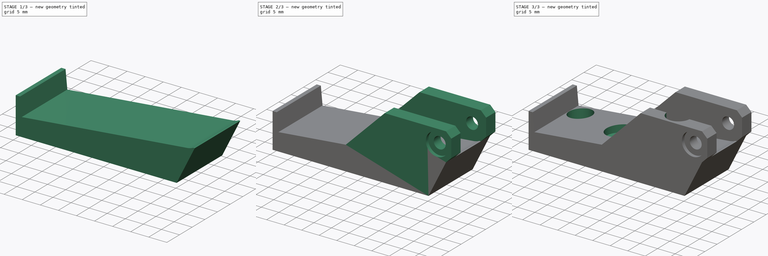
[diagram: build sequence overview — one tinted view per stage of 3, left to right]
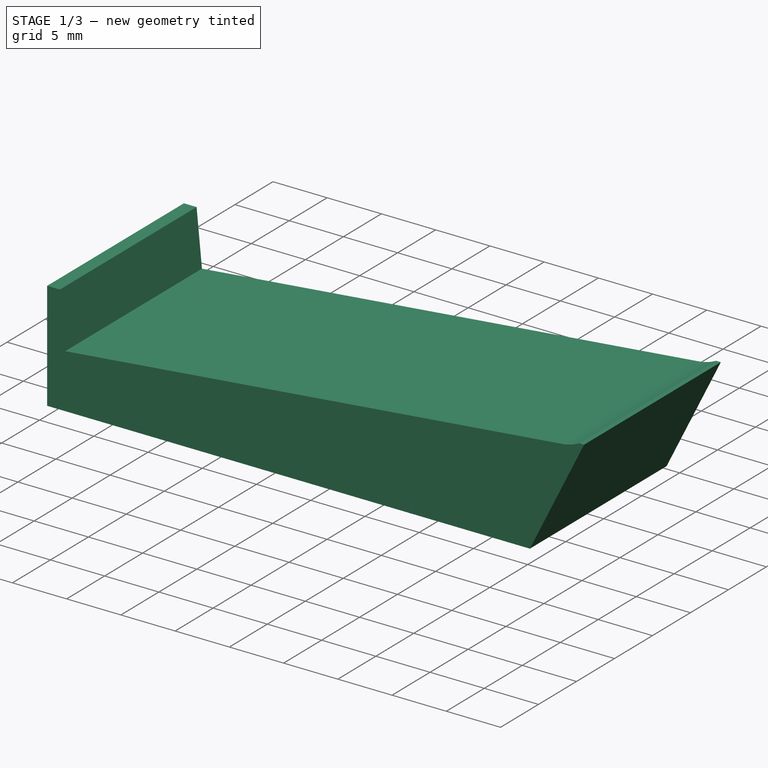
[diagram: stage 1 of 3 — iso view after this stage's code; geometry added in this stage tinted green]
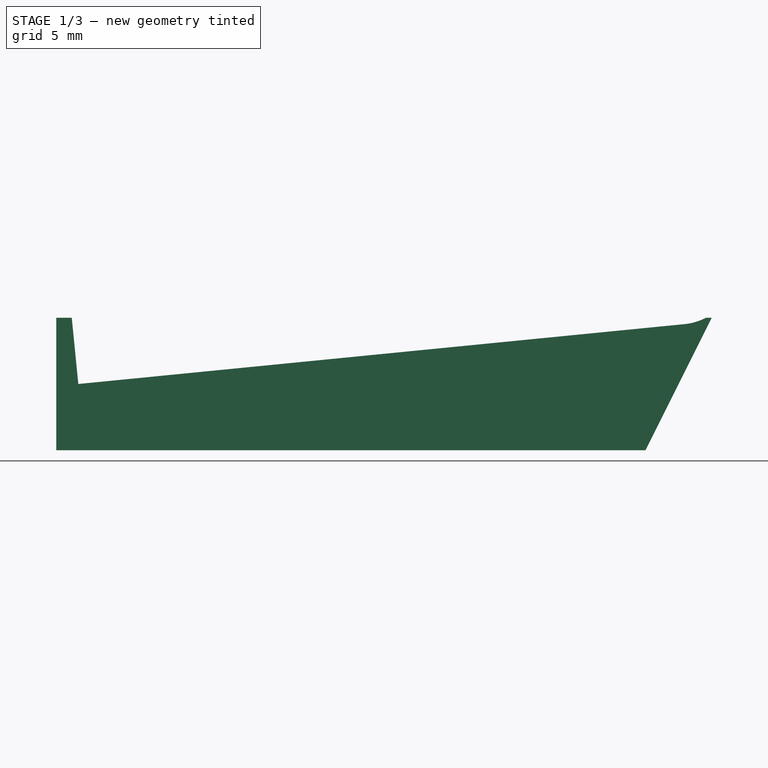
[diagram: stage 1 of 3 — front view after this stage's code; geometry added in this stage tinted green]
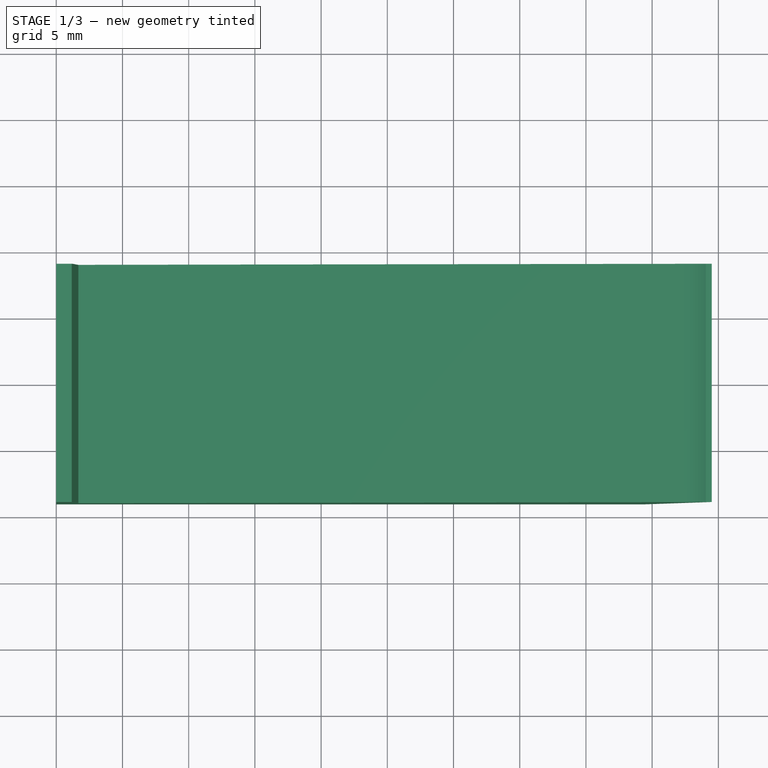
[diagram: stage 1 of 3 — top view after this stage's code; geometry added in this stage tinted green]
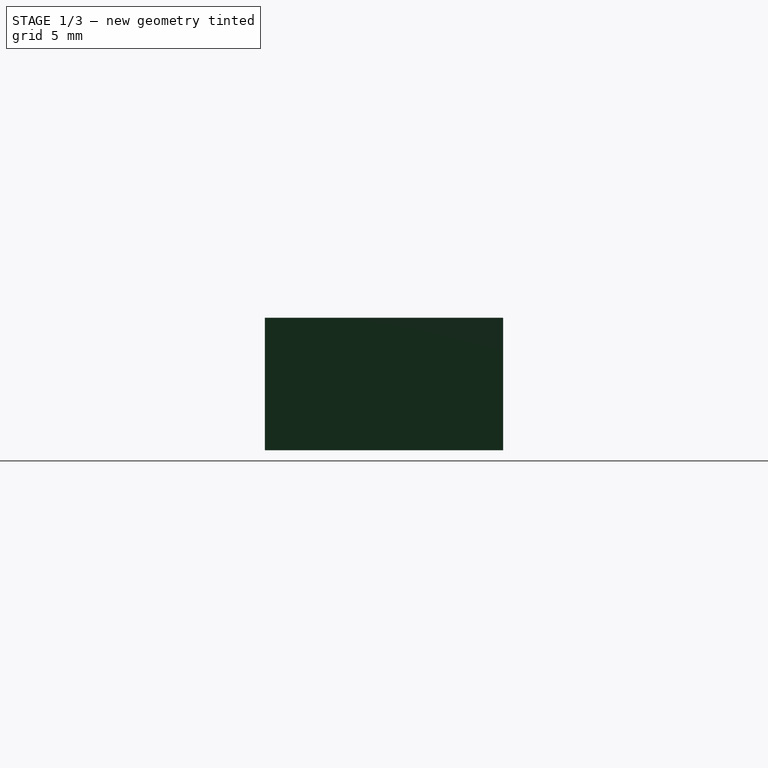
[diagram: stage 1 of 3 — right view after this stage's code; geometry added in this stage tinted green]
FCSTD DOCUMENT  (FreeCAD 1.0R39109 (Git))
Label: RearSightBase.stl
License: All rights reserved
LicenseURL: http://en.wikipedia.org/wiki/All_rights_reserved
objects: Sketcher::SketchObject×6, PartDesign::Hole×3, PartDesign::Pad×2, PartDesign::Pocket×1, PartDesign::Mirrored×1, PartDesign::Body×1, App::Part×1
note: 33 computed .brp shape members not serialized (recipe doc carries the construction recipe); baked Part::Feature solids carry a one-line shape summary decoded from their .brp

FEATURE [Sketcher::SketchObject] Sketch008
  ArcFitTolerance = 1e-06
  AttachmentSupport = -> [XZ_Plane005]
  FullyConstrained = true
  MakeInternals = false
  MapMode = 5
  Placement = pos=(0,0,0) rot=(1,0,0;1.5708rad)
  sketch-geometry (4):
    g0: LineSegment StartX=-20 StartY=0 StartZ=0 EndX=-20 EndY=-10 EndZ=0
    g1: LineSegment StartX=-20 StartY=-10 StartZ=0 EndX=24.5 EndY=-10 EndZ=0
    g2: LineSegment StartX=24.5 StartY=-10 StartZ=0 EndX=29.5 EndY=0 EndZ=0
    g3: LineSegment StartX=29.5 StartY=0 StartZ=0 EndX=-20 EndY=0 EndZ=0
  constraints (12):
    c: Vertical(g0)
    c: Coincident(g0,g1)
    c: Horizontal(g1)
    c: Coincident(g1,g2)
    c: Coincident(g2,g3)
    c: Coincident(g3,g0)
    c: Horizontal(g3)
    c: DistanceX(g2,g2) = 5
    c: DistanceY(g2,g2) = 10
    c: DistanceX(g1,g1) = 44.5
    c: PointOnObject(g0,g-1)
    c: DistanceX(g0,g-1) = 20
FEATURE [PartDesign::Pad] Pad003
  Direction = (0,-1,2e-16)
  Length = 18
  Length2 = 10
  Midplane = true
  Placement = pos=(0,0,0) rot=(1,0,0;1.5708rad)
  Profile = -> Sketch008
  ReferenceAxis = -> Sketch008 [N_Axis]
  Refine = true
  Suppressed = false
  Type = 0
FEATURE [Sketcher::SketchObject] Sketch009
  ArcFitTolerance = 1e-06
  AttachmentOffset = pos=(0,0,9) rot=(0,0,1;0rad)
  AttachmentSupport = -> [XZ_Plane005]
  FullyConstrained = true
  MakeInternals = false
  MapMode = 5
  Placement = pos=(0,-9,2e-15) rot=(1,0,0;1.5708rad)
  sketch-geometry (7):
    g0: LineSegment StartX=31 StartY=6.5 StartZ=0 EndX=29.5 EndY=8 EndZ=0
    g1: LineSegment StartX=29.5 StartY=8 StartZ=0 EndX=12 EndY=8 EndZ=0
    g2: LineSegment StartX=12 StartY=8 StartZ=0 EndX=-1 EndY=-5 EndZ=0
    g3: LineSegment StartX=29.5 StartY=0 StartZ=0 EndX=31 EndY=1.5 EndZ=0
    g4: LineSegment StartX=31 StartY=1.5 StartZ=0 EndX=31 EndY=6.5 EndZ=0
    g5: LineSegment StartX=29.5 StartY=0 StartZ=0 EndX=26.6132 EndY=-5 EndZ=0
    g6: LineSegment StartX=26.6132 StartY=-5 StartZ=0 EndX=-1 EndY=-5 EndZ=0
  constraints (21):
    c: PointOnObject(g3,g-1)
    c: Coincident(g0,g1)
    c: Horizontal(g1)
    c: Coincident(g1,g2)
    c: DistanceX(g-1,g3) = 29.5
    c: DistanceY(g-1,g0) = 8
    c: Angle(g2,g1) = 2.35619
    c: Angle(g1,g0) = 2.35619
    c: Coincident(g4,g3)
    c: Coincident(g4,g0)
    c: Vertical(g4)
    c: Angle(g-1,g3) = 0.785398
    c: DistanceX(g-1,g3) = 31
    c: Vertical(g0,g3)
    c: Coincident(g5,g3)
    c: Coincident(g6,g5)
    c: Coincident(g6,g2)
    c: Horizontal(g6)
    c: DistanceY(g2,g-1) = 5
    c: DistanceX(g-1,g1) = 12
    c: Angle(g5,g-1) = 2.0944
FEATURE [Sketcher::SketchObject] Sketch010
  ArcFitTolerance = 1e-06
  AttachmentOffset = pos=(0,0,9) rot=(0,0,1;0rad)
  AttachmentSupport = -> [XZ_Plane005]
  FullyConstrained = true
  MakeInternals = false
  MapMode = 5
  Placement = pos=(0,-9,2e-15) rot=(1,0,0;1.5708rad)
  sketch-geometry (1):
    g0: Circle CenterX=27 CenterY=4 CenterZ=0 NormalX=0 NormalY=0 NormalZ=1 AngleXU=0 Radius=1.5
  constraints (3):
    c: DistanceX(g-1,g0) = 27
    c: DistanceY(g-1,g0) = 4
    c: Diameter(g0) = 3
FEATURE [Sketcher::SketchObject] Sketch011
  ArcFitTolerance = 1e-06
  AttachmentSupport = -> [XY_Plane005]
  FullyConstrained = true
  MakeInternals = false
  MapMode = 5
  sketch-geometry (1):
    g0: Circle CenterX=0 CenterY=0 CenterZ=0 NormalX=0 NormalY=0 NormalZ=1 AngleXU=0 Radius=1.6
  constraints (2):
    c: Coincident(g0,g-1)
    c: Diameter(g0) = 3.2
FEATURE [Sketcher::SketchObject] Sketch012
  ArcFitTolerance = 1e-06
  AttachmentSupport = -> [XZ_Plane005]
  FullyConstrained = true
  MakeInternals = false
  MapMode = 5
  Placement = pos=(0,0,0) rot=(1,0,0;1.5708rad)
  sketch-geometry (4):
    g0: ArcOfCircle CenterX=27 CenterY=4 CenterZ=0 NormalX=0 NormalY=0 NormalZ=1 AngleXU=0 Radius=4.5 StartAngle=4.81085 EndAngle=7.85398
    g1: LineSegment StartX=27.4423 StartY=-0.478206 StartZ=0 EndX=-18.3349 EndY=-5 EndZ=0
    g2: LineSegment StartX=-18.3349 StartY=-5 StartZ=0 EndX=-19.6684 EndY=8.5 EndZ=0
    g3: LineSegment StartX=-19.6684 StartY=8.5 StartZ=0 EndX=27 EndY=8.5 EndZ=0
  constraints (11):
    c: Coincident(g2,g1)
    c: Coincident(g3,g2)
    c: Horizontal(g3)
    c: Radius(g0) = 4.5
    c: DistanceY(g-1,g0) = 4
    c: DistanceX(g-1,g0) = 27
    c: DistanceY(g1,g-1) = 5
    c: Perpendicular(g1,g2)
    c: Distance(g1,g1) = 46
    c: Tangent(g3,g0) = 1.5708
    c: Tangent(g1,g0) = 1.5708
FEATURE [PartDesign::Pocket] Pocket003
  BaseFeature = -> Pad003
  Direction = (0,1,-2e-16)
  Length = 5
  Length2 = 5
  Midplane = true
  Placement = pos=(0,0,0) rot=(1,0,0;1.5708rad)
  Profile = -> Sketch012
  ReferenceAxis = -> Sketch012 [N_Axis]
  Refine = true
  Suppressed = false
  Type = 1
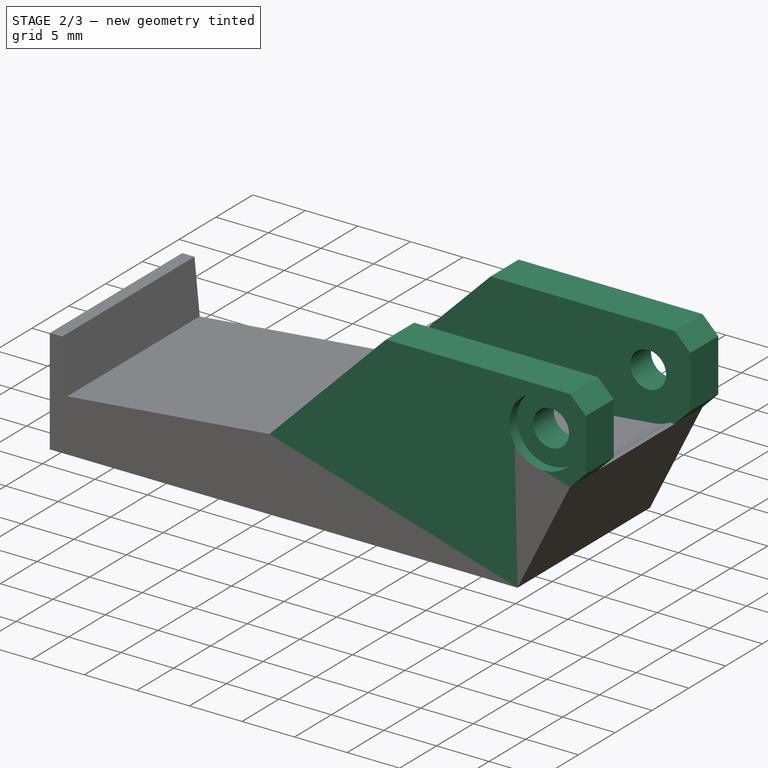
[diagram: stage 2 of 3 — iso view after this stage's code; geometry added in this stage tinted green]
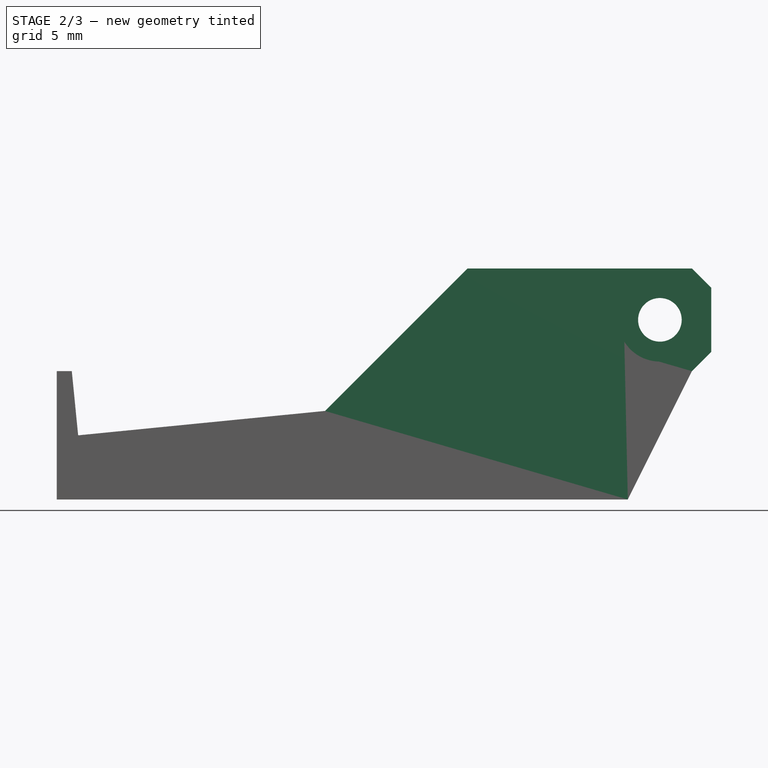
[diagram: stage 2 of 3 — front view after this stage's code; geometry added in this stage tinted green]
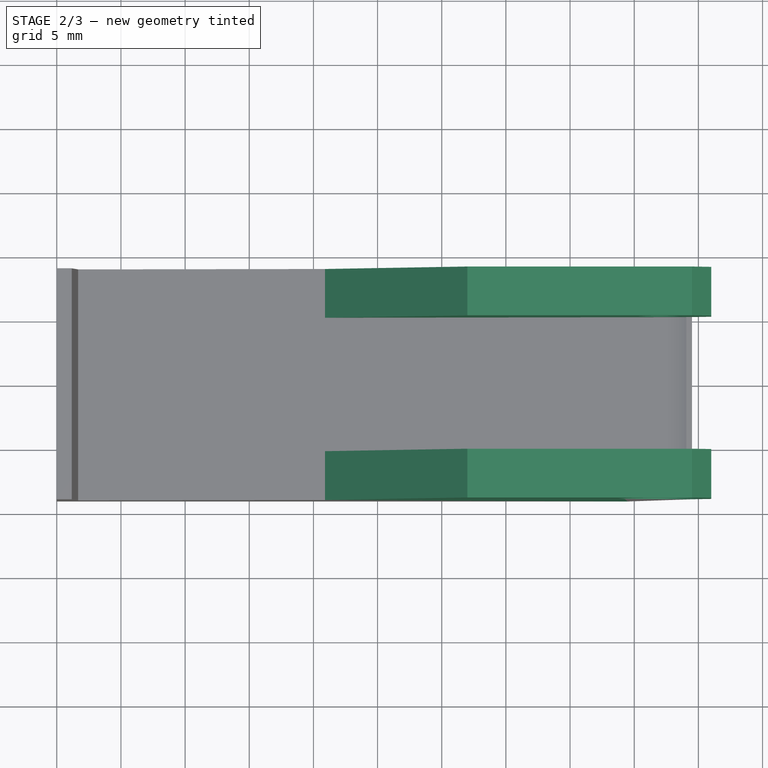
[diagram: stage 2 of 3 — top view after this stage's code; geometry added in this stage tinted green]
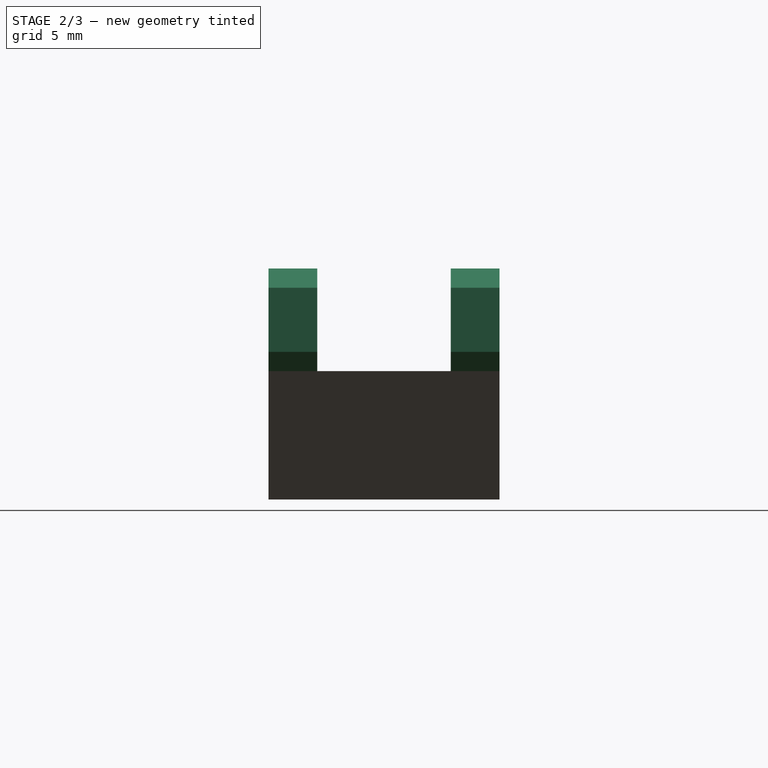
[diagram: stage 2 of 3 — right view after this stage's code; geometry added in this stage tinted green]
FEATURE [PartDesign::Pad] Pad004  label="Ears"
  BaseFeature = -> Pocket003
  Direction = (0,-1,2e-16)
  Length = 3.8
  Length2 = 10
  Placement = pos=(0,0,0) rot=(1,0,0;1.5708rad)
  Profile = -> Sketch009
  ReferenceAxis = -> Sketch009 [N_Axis]
  Refine = true
  Reversed = true
  Suppressed = false
  Type = 0
FEATURE [PartDesign::Hole] Hole002
  BaseFeature = -> Pad004
  CustomThreadClearance = 0
  Depth = 25
  DepthType = 0
  Diameter = 3.4
  DrillForDepth = false
  DrillPoint = 1
  DrillPointAngle = 118
  HoleCutCountersinkAngle = 90
  HoleCutCustomValues = false
  HoleCutDepth = 1
  HoleCutDiameter = 6.5
  HoleCutType = 1
  ModelThread = false
  Placement = pos=(0,0,0) rot=(1,0,0;1.5708rad)
  Profile = -> Sketch010
  Refine = true
  Suppressed = false
  Tapered = false
  TaperedAngle = 90
  ThreadClass = 0
  ThreadDepth = 25
  ThreadDepthType = 0
  ThreadDirection = 0
  ThreadFit = 0
  ThreadSize = 9
  ThreadType = 1
  Threaded = false
  UseCustomThreadClearance = false
FEATURE [PartDesign::Mirrored] Mirrored001
  BaseFeature = -> Hole002
  MirrorPlane = -> XZ_Plane005
  Originals = -> [Pad004,Hole002]
  Placement = pos=(0,0,0) rot=(1,0,0;1.5708rad)
  Refine = true
  Suppressed = false
  TransformMode = 0
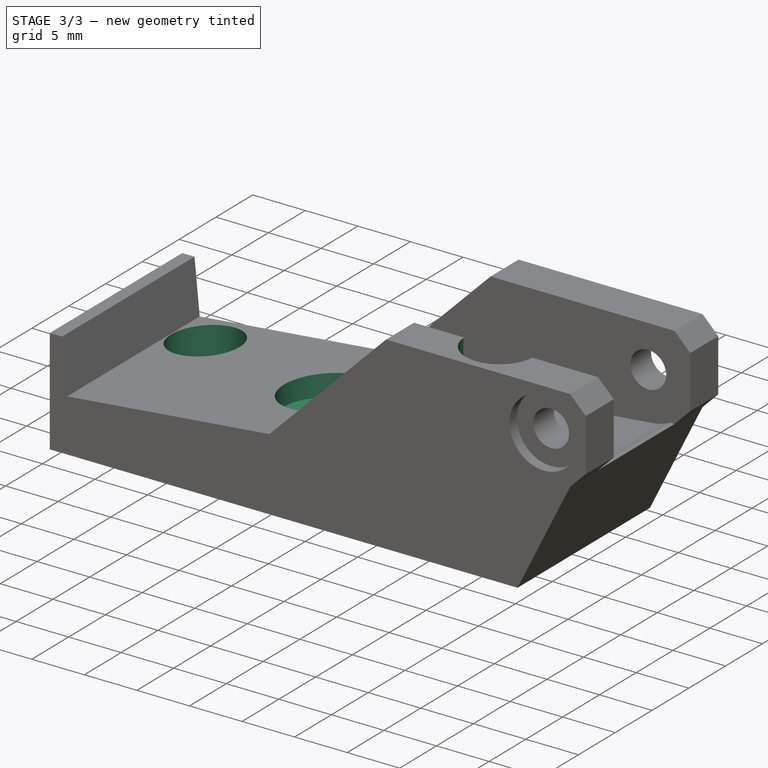
[diagram: stage 3 of 3 — iso view after this stage's code; geometry added in this stage tinted green]
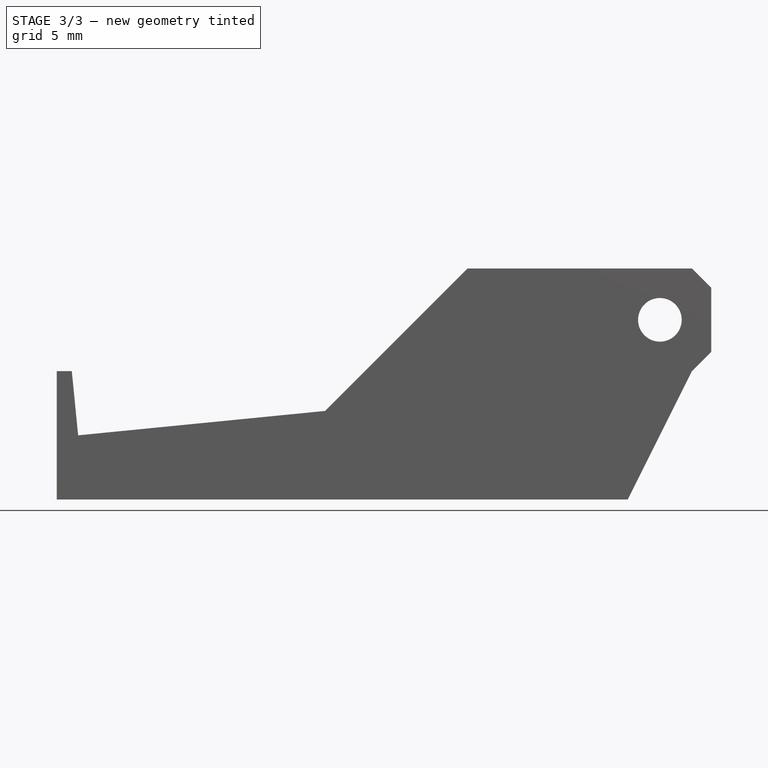
[diagram: stage 3 of 3 — front view after this stage's code; geometry added in this stage tinted green]
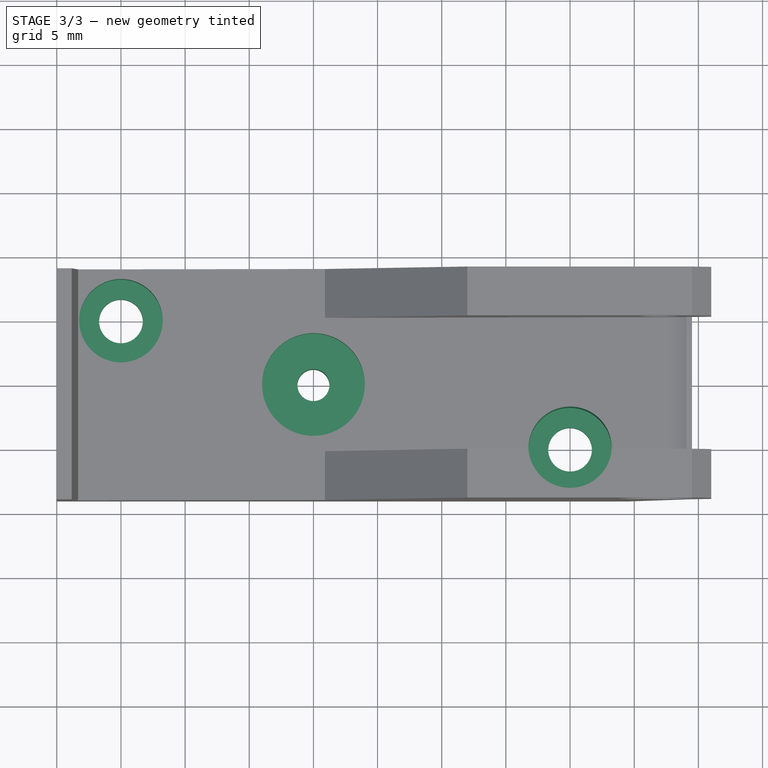
[diagram: stage 3 of 3 — top view after this stage's code; geometry added in this stage tinted green]
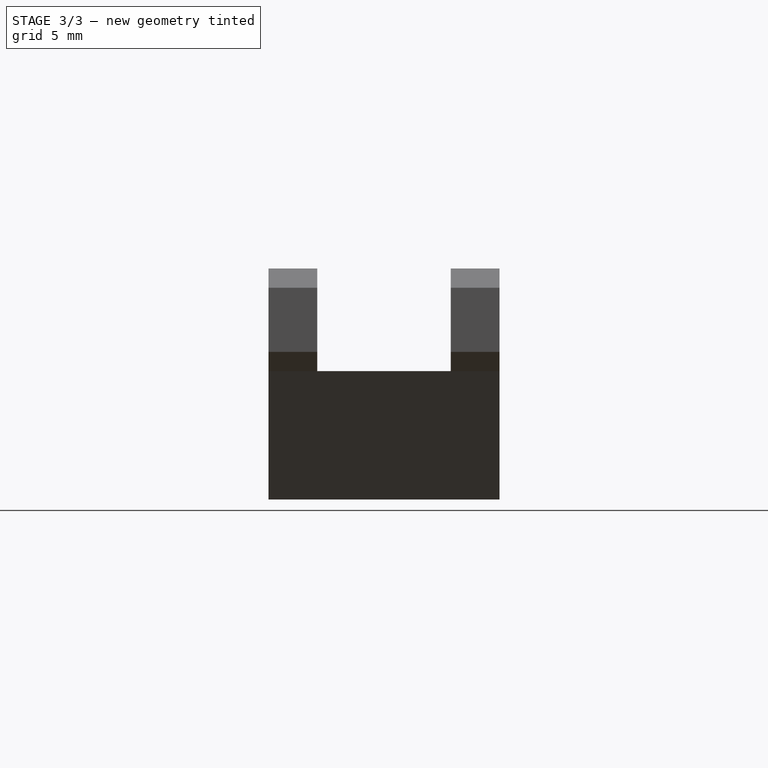
[diagram: stage 3 of 3 — right view after this stage's code; geometry added in this stage tinted green]
FEATURE [PartDesign::Hole] Hole003  label="HeightAsjustmentHole"
  BaseFeature = -> Mirrored001
  CustomThreadClearance = 0
  Depth = 25
  DepthType = 0
  Diameter = 2.5
  DrillForDepth = false
  DrillPoint = 1
  DrillPointAngle = 118
  HoleCutCountersinkAngle = 90
  HoleCutCustomValues = false
  HoleCutDepth = 5.5
  HoleCutDiameter = 8
  HoleCutType = 1
  ModelThread = false
  Placement = pos=(0,0,0) rot=(1,0,0;1.5708rad)
  Profile = -> Sketch011
  Refine = true
  Suppressed = false
  Tapered = false
  TaperedAngle = 90
  ThreadClass = 0
  ThreadDepth = 25
  ThreadDepthType = 0
  ThreadDirection = 0
  ThreadFit = 2
  ThreadSize = 9
  ThreadType = 1
  Threaded = true
  UseCustomThreadClearance = false
FEATURE [Sketcher::SketchObject] Sketch013
  ArcFitTolerance = 1e-06
  AttachmentOffset = pos=(0,0,10) rot=(0,0,1;0rad)
  AttachmentSupport = -> [XY_Plane005]
  FullyConstrained = true
  MakeInternals = false
  MapMode = 5
  Placement = pos=(0,0,10) rot=(0,0,1;0rad)
  sketch-geometry (2):
    g0: Circle CenterX=-15 CenterY=5 CenterZ=0 NormalX=0 NormalY=0 NormalZ=1 AngleXU=0 Radius=1.5
    g1: Circle CenterX=20 CenterY=-5 CenterZ=0 NormalX=0 NormalY=0 NormalZ=1 AngleXU=0 Radius=1.5
  constraints (6):
    c: DistanceX(g0,g1) = 35
    c: Distance(g0,g-1) = 5
    c: DistanceX(g0,g-1) = 15
    c: Distance(g1,g-1) = 5
    c: Equal(g1,g0)
    c: Diameter(g0) = 3
FEATURE [PartDesign::Hole] Hole004  label="MountToFrameHoles"
  BaseFeature = -> Hole003
  CustomThreadClearance = 0
  Depth = 25
  DepthType = 0
  Diameter = 3.4
  DrillForDepth = false
  DrillPoint = 1
  DrillPointAngle = 118
  HoleCutCountersinkAngle = 90
  HoleCutCustomValues = false
  HoleCutDepth = 18
  HoleCutDiameter = 6.5
  HoleCutType = 1
  ModelThread = false
  Placement = pos=(0,0,0) rot=(1,0,0;1.5708rad)
  Profile = -> Sketch013
  Refine = true
  Suppressed = false
  Tapered = false
  TaperedAngle = 90
  ThreadClass = 0
  ThreadDepth = 25
  ThreadDepthType = 0
  ThreadDirection = 0
  ThreadFit = 0
  ThreadSize = 9
  ThreadType = 1
  Threaded = false
  UseCustomThreadClearance = false
FEATURE [PartDesign::Body] Body002  label="RearSightBase"
  AllowCompound = false
  Group = -> [Sketch008,Pad003,Sketch009,Pocket003,Pad004,Sketch010,Hole002,Mirrored001,Sketch011,Hole003,Sketch012,Sketch013,Hole004]
  Origin = -> Origin005
  Tip = -> Hole004
FEATURE [App::Part] Part002  label="RearSightBase.stl"
  Group = -> [Body002]
  Origin = -> Origin004
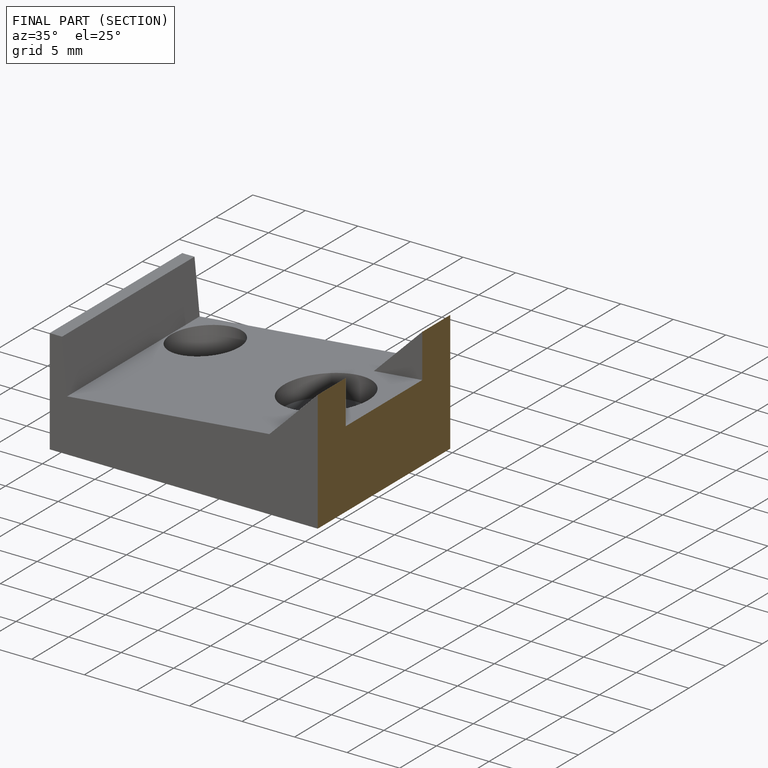
[diagram: finished part — half-section view (interior)]
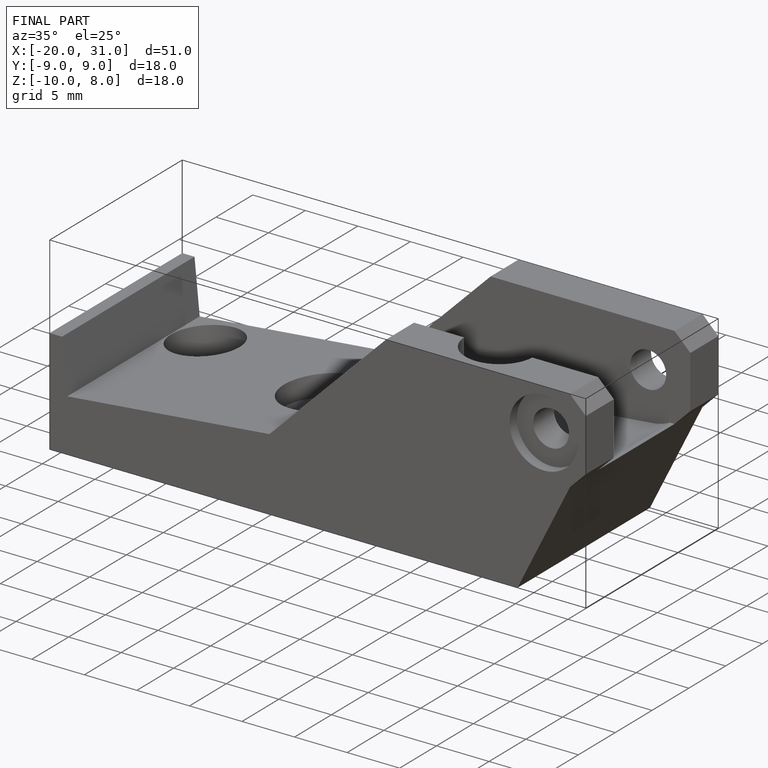
[diagram: finished part — iso view with bounding-box wireframe]
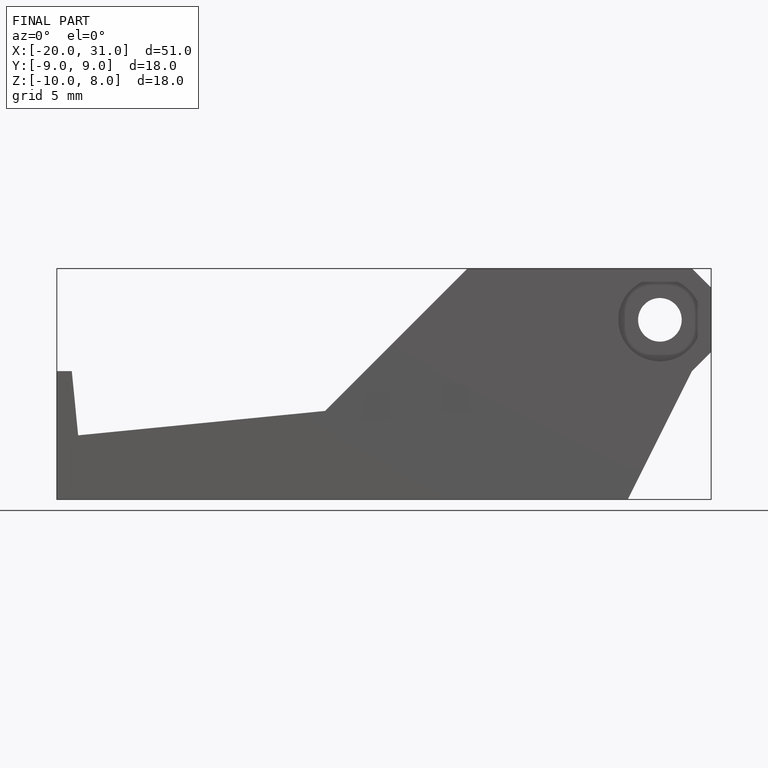
[diagram: finished part — front view with bounding-box wireframe]
